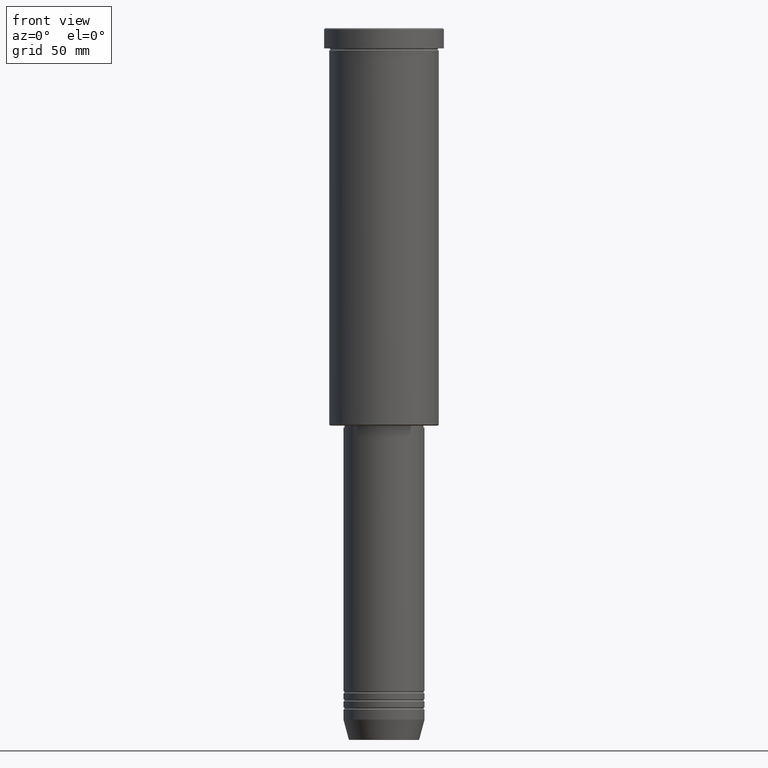
[diagram: clean part render]
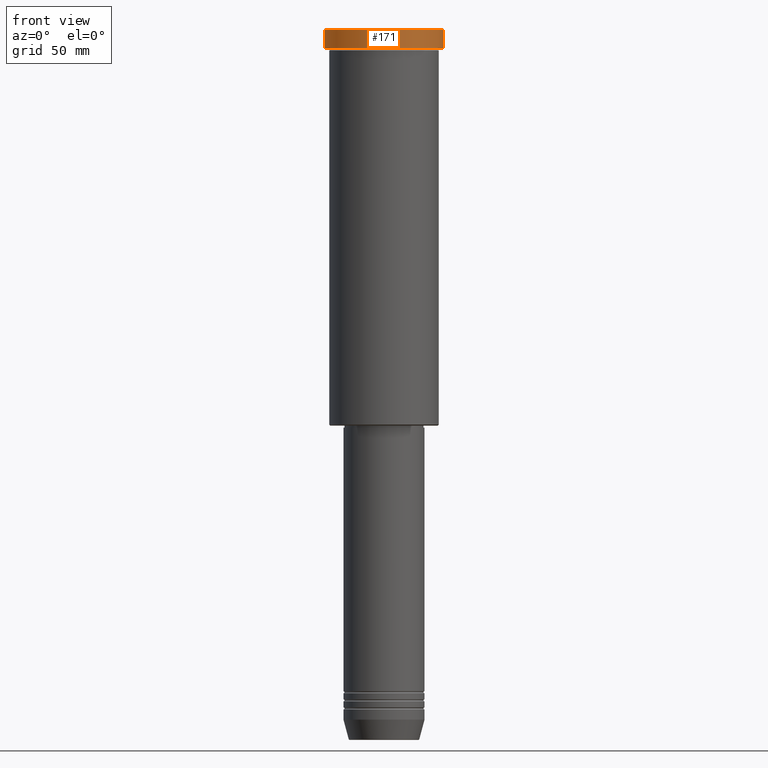
[diagram: same view with one face highlighted and labeled with its STEP entity id]
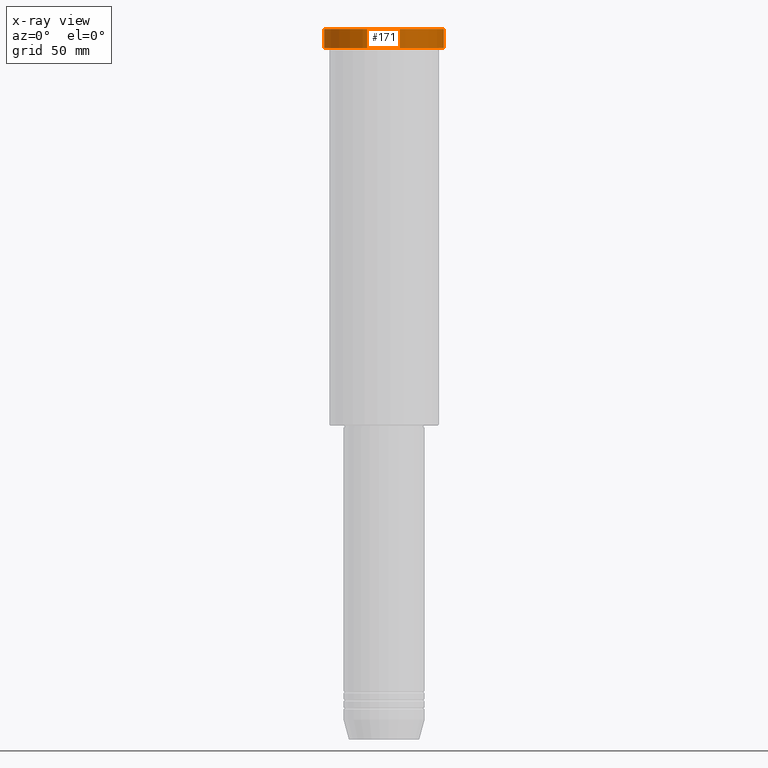
[diagram: x-ray of the same camera — body ghosted, the highlighted face saturated]
A machine part, front view. The second image highlights one B-rep face of the part: STEP entity #171.
The next image is the same camera in x-ray: the body ghosted, the highlighted face saturated — about 0% of this face is hidden behind the body in this view.
In plain terms, the highlighted cylindrical surface (partial cylindrical patch) has radius 29.5 mm, axis along (-0, -0, 1).
Its self-contained STEP definition (entity closure, byte-faithful):
#1 = AXIS2_PLACEMENT_3D ( 'NONE', #478, #634, #557 ) ;
#11 = EDGE_CURVE ( 'NONE', #394, #988, #363, .T. ) ;
#37 = EDGE_LOOP ( 'NONE', ( #911, #449, #671, #111 ) ) ;
#97 = VECTOR ( 'NONE', #946, 1000.000000000000000 ) ;
#111 = ORIENTED_EDGE ( 'NONE', *, *, #11, .T. ) ;
#145 = CARTESIAN_POINT ( 'NONE',  ( -29.50000000000000000, 3.612708057484691604E-15, -9.999999999999992895 ) ) ;
#171 = ADVANCED_FACE ( 'NONE', ( #205 ), #487, .T. ) ;
#205 = FACE_OUTER_BOUND ( 'NONE', #37, .T. ) ;
#208 = VECTOR ( 'NONE', #798, 1000.000000000000000 ) ;
#232 = DIRECTION ( 'NONE',  ( -0.000000000000000000, -0.000000000000000000, 1.000000000000000000 ) ) ;
#292 = DIRECTION ( 'NONE',  ( -0.000000000000000000, -0.000000000000000000, 1.000000000000000000 ) ) ;
#324 = CARTESIAN_POINT ( 'NONE',  ( 0.000000000000000000, 0.000000000000000000, 0.000000000000000000 ) ) ;
#363 = CIRCLE ( 'NONE', #1, 29.50000000000000000 ) ;
#376 = VERTEX_POINT ( 'NONE', #894 ) ;
#394 = VERTEX_POINT ( 'NONE', #611 ) ;
#395 = EDGE_CURVE ( 'NONE', #772, #988, #978, .T. ) ;
#423 = CIRCLE ( 'NONE', #841, 29.50000000000000000 ) ;
#449 = ORIENTED_EDGE ( 'NONE', *, *, #549, .T. ) ;
#478 = CARTESIAN_POINT ( 'NONE',  ( 0.000000000000000000, 0.000000000000000000, -0.5000000000000559552 ) ) ;
#487 = CYLINDRICAL_SURFACE ( 'NONE', #625, 29.50000000000000000 ) ;
#522 = CARTESIAN_POINT ( 'NONE',  ( -29.50000000000000000, 3.612708057484691604E-15, 0.000000000000000000 ) ) ;
#544 = CARTESIAN_POINT ( 'NONE',  ( -29.50000000000000000, 3.612708057484691604E-15, -0.5000000000000559552 ) ) ;
#549 = EDGE_CURVE ( 'NONE', #772, #376, #423, .T. ) ;
#557 = DIRECTION ( 'NONE',  ( 1.000000000000000000, 0.000000000000000000, 0.000000000000000000 ) ) ;
#579 = LINE ( 'NONE', #682, #97 ) ;
#611 = CARTESIAN_POINT ( 'NONE',  ( 29.50000000000000000, 0.000000000000000000, -0.5000000000000559552 ) ) ;
#625 = AXIS2_PLACEMENT_3D ( 'NONE', #324, #232, #680 ) ;
#634 = DIRECTION ( 'NONE',  ( 0.000000000000000000, 0.000000000000000000, -1.000000000000000000 ) ) ;
#671 = ORIENTED_EDGE ( 'NONE', *, *, #672, .T. ) ;
#672 = EDGE_CURVE ( 'NONE', #376, #394, #579, .T. ) ;
#680 = DIRECTION ( 'NONE',  ( 1.000000000000000000, 0.000000000000000000, 0.000000000000000000 ) ) ;
#682 = CARTESIAN_POINT ( 'NONE',  ( 29.50000000000000000, 0.000000000000000000, 0.000000000000000000 ) ) ;
#772 = VERTEX_POINT ( 'NONE', #145 ) ;
#798 = DIRECTION ( 'NONE',  ( -0.000000000000000000, -0.000000000000000000, 1.000000000000000000 ) ) ;
#831 = CARTESIAN_POINT ( 'NONE',  ( 0.000000000000000000, 0.000000000000000000, -9.999999999999992895 ) ) ;
#836 = DIRECTION ( 'NONE',  ( 1.000000000000000000, 0.000000000000000000, 0.000000000000000000 ) ) ;
#841 = AXIS2_PLACEMENT_3D ( 'NONE', #831, #292, #836 ) ;
#894 = CARTESIAN_POINT ( 'NONE',  ( 29.50000000000000000, 0.000000000000000000, -9.999999999999992895 ) ) ;
#911 = ORIENTED_EDGE ( 'NONE', *, *, #395, .F. ) ;
#946 = DIRECTION ( 'NONE',  ( -0.000000000000000000, -0.000000000000000000, 1.000000000000000000 ) ) ;
#978 = LINE ( 'NONE', #522, #208 ) ;
#988 = VERTEX_POINT ( 'NONE', #544 ) ;